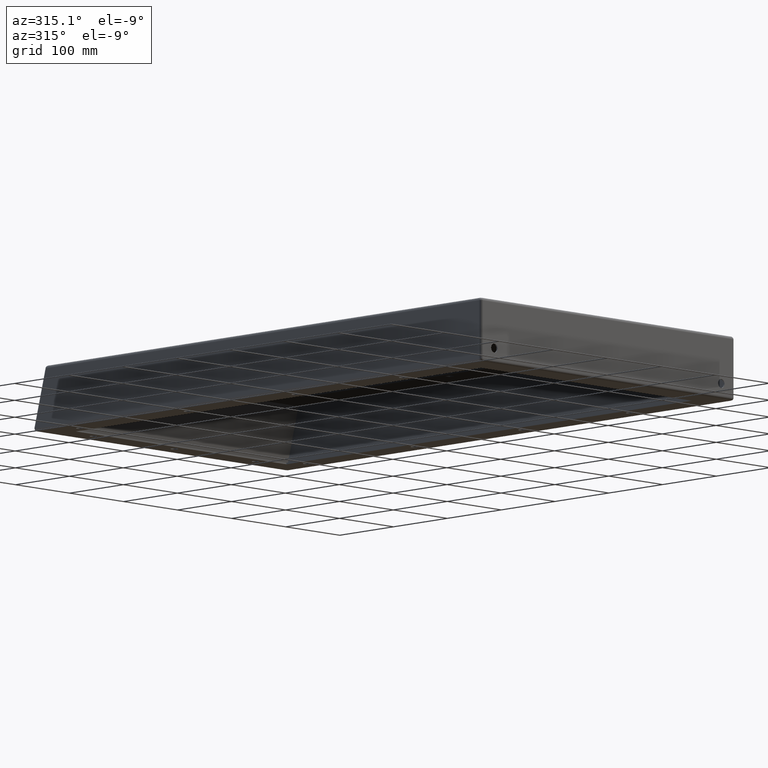
[diagram: clean part render]
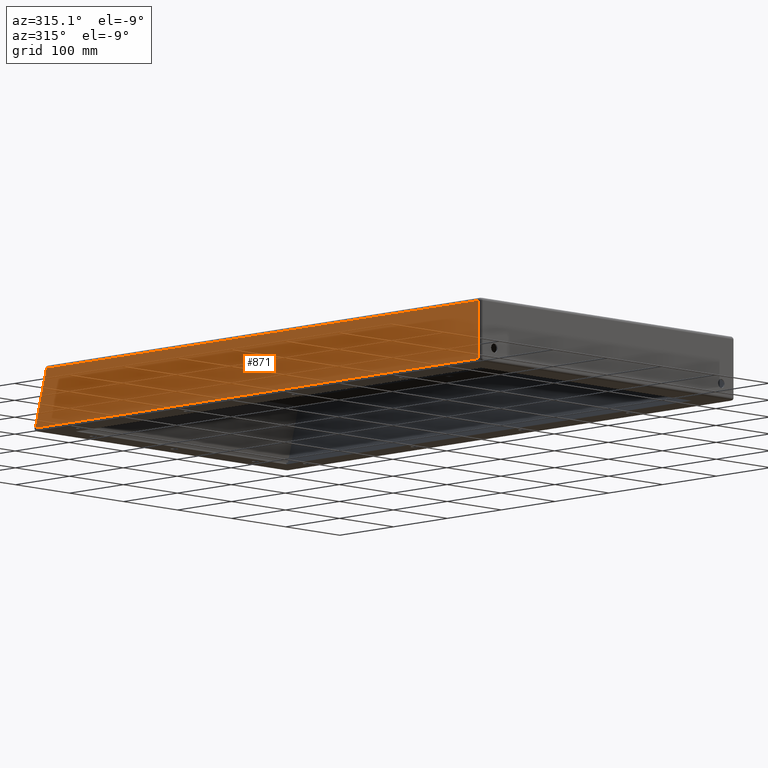
[diagram: same view with one face highlighted and labeled with its STEP entity id]
A machine part, auxiliary view. The second image highlights one B-rep face of the part: STEP entity #871.
In plain terms, the highlighted planar face has unit normal (1, 0, -0).
Its self-contained STEP definition (entity closure, byte-faithful):
#319 = CARTESIAN_POINT ( 'NONE',  ( -235.0000000000000000, 827.5627798652805000, 3.999999999999988900 ) ) ;
#320 = CARTESIAN_POINT ( 'NONE',  ( -235.0000000000000000, 3.999999999999998200, 4.000000000000000000 ) ) ;
#737 = PLANE ( 'NONE',  #1814 ) ;
#738 = CARTESIAN_POINT ( 'NONE',  ( -235.0000000000000000, 0.0000000000000000000, 0.0000000000000000000 ) ) ;
#743 = DIRECTION ( 'NONE',  ( 1.000000000000000000, 0.0000000000000000000, -0.0000000000000000000 ) ) ;
#744 = DIRECTION ( 'NONE',  ( -0.0000000000000000000, 0.0000000000000000000, -1.000000000000000000 ) ) ;
#810 = EDGE_LOOP ( 'NONE', ( #1356, #1357, #1358, #1359 ) ) ;
#871 = ADVANCED_FACE ( 'NONE', ( #2140 ), #737, .F. ) ;
#888 = VERTEX_POINT ( 'NONE', #2254 ) ;
#900 = VERTEX_POINT ( 'NONE', #2263 ) ;
#1054 = EDGE_CURVE ( 'NONE', #1514, #1515, #2595, .T. ) ;
#1055 = EDGE_CURVE ( 'NONE', #1515, #900, #2589, .T. ) ;
#1056 = EDGE_CURVE ( 'NONE', #900, #888, #2599, .T. ) ;
#1057 = EDGE_CURVE ( 'NONE', #888, #1514, #2601, .T. ) ;
#1356 = ORIENTED_EDGE ( 'NONE', *, *, #1054, .T. ) ;
#1357 = ORIENTED_EDGE ( 'NONE', *, *, #1055, .T. ) ;
#1358 = ORIENTED_EDGE ( 'NONE', *, *, #1056, .T. ) ;
#1359 = ORIENTED_EDGE ( 'NONE', *, *, #1057, .T. ) ;
#1514 = VERTEX_POINT ( 'NONE', #319 ) ;
#1515 = VERTEX_POINT ( 'NONE', #320 ) ;
#1814 = AXIS2_PLACEMENT_3D ( 'NONE', #738, #743, #744 ) ;
#2140 = FACE_OUTER_BOUND ( 'NONE', #810, .T. ) ;
#2254 = CARTESIAN_POINT ( 'NONE',  ( -235.0000000000000000, 806.9306920480842100, 81.00000000000008500 ) ) ;
#2263 = CARTESIAN_POINT ( 'NONE',  ( -235.0000000000000000, 3.999999999999989800, 81.00000000000000000 ) ) ;
#2589 = LINE ( 'NONE', #2821, #2600 ) ;
#2595 = LINE ( 'NONE', #2841, #2598 ) ;
#2598 = VECTOR ( 'NONE', #2842, 1000.000000000000000 ) ;
#2599 = LINE ( 'NONE', #2844, #2602 ) ;
#2600 = VECTOR ( 'NONE', #2843, 1000.000000000000000 ) ;
#2601 = LINE ( 'NONE', #2846, #2604 ) ;
#2602 = VECTOR ( 'NONE', #2845, 1000.000000000000000 ) ;
#2604 = VECTOR ( 'NONE', #2847, 999.9999999999998900 ) ;
#2821 = CARTESIAN_POINT ( 'NONE',  ( -235.0000000000000000, 3.999999999999999100, 4.898587196589412800E-016 ) ) ;
#2841 = CARTESIAN_POINT ( 'NONE',  ( -235.0000000000000000, 0.0000000000000000000, 4.000000000000000000 ) ) ;
#2842 = DIRECTION ( 'NONE',  ( -0.0000000000000000000, -1.000000000000000000, -0.0000000000000000000 ) ) ;
#2843 = DIRECTION ( 'NONE',  ( 0.0000000000000000000, -1.224646799147353500E-016, 1.000000000000000000 ) ) ;
#2844 = CARTESIAN_POINT ( 'NONE',  ( -235.0000000000000000, -8.326672684688675600E-015, 81.00000000000000000 ) ) ;
#2845 = DIRECTION ( 'NONE',  ( -0.0000000000000000000, 1.000000000000000000, 1.027984282060330300E-016 ) ) ;
#2846 = CARTESIAN_POINT ( 'NONE',  ( -235.0000000000000000, 773.1265852275423600, 207.1586441587493000 ) ) ;
#2847 = DIRECTION ( 'NONE',  ( -0.0000000000000000000, 0.2588190451025181900, -0.9659258262890690900 ) ) ;